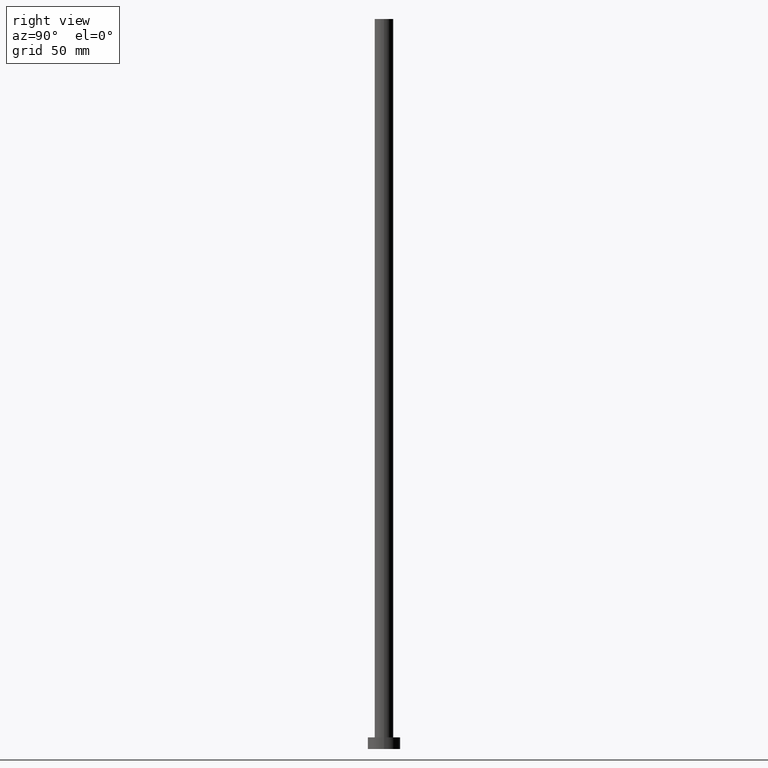
[diagram: clean part render]
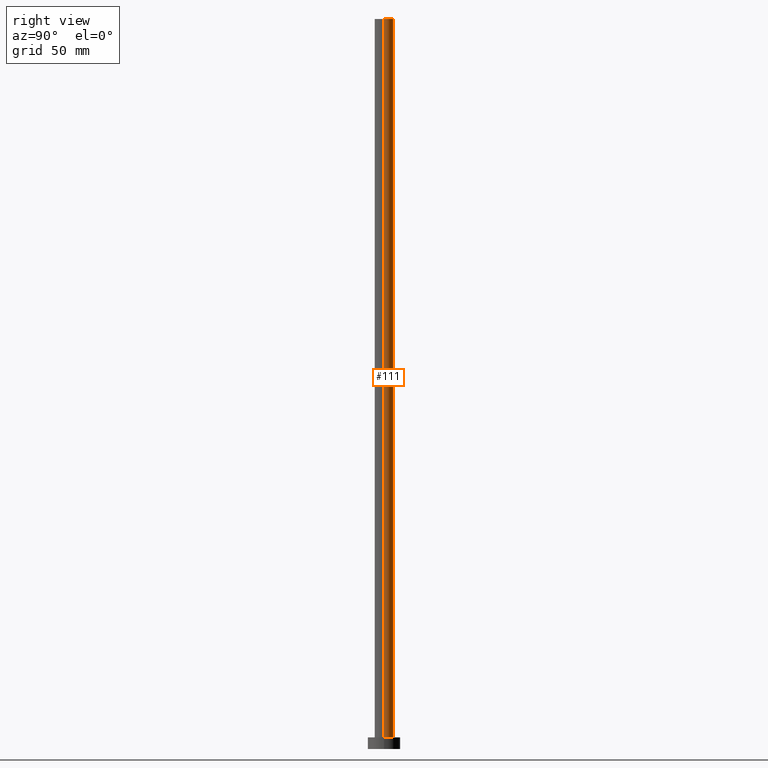
[diagram: same view with one face highlighted and labeled with its STEP entity id]
A machine part, right view. The second image highlights one B-rep face of the part: STEP entity #111.
In plain terms, the highlighted cylindrical surface (edge-blend (fillet) strip) has radius 4 mm, axis along (-0, -0, -1).
Its self-contained STEP definition (entity closure, byte-faithful):
#5 = CARTESIAN_POINT ( 'NONE',  ( 0.000000000000000000, 0.000000000000000000, 5.000000000000000000 ) ) ;
#10 = DIRECTION ( 'NONE',  ( 0.000000000000000000, 0.000000000000000000, 1.000000000000000000 ) ) ;
#23 = DIRECTION ( 'NONE',  ( -0.000000000000000000, -0.000000000000000000, -1.000000000000000000 ) ) ;
#26 = DIRECTION ( 'NONE',  ( -1.000000000000000000, 0.000000000000000000, 0.000000000000000000 ) ) ;
#29 = CARTESIAN_POINT ( 'NONE',  ( 0.000000000000000000, 0.000000000000000000, 315.0000000000000000 ) ) ;
#38 = VECTOR ( 'NONE', #223, 1000.000000000000000 ) ;
#58 = VERTEX_POINT ( 'NONE', #116 ) ;
#60 = FACE_OUTER_BOUND ( 'NONE', #70, .T. ) ;
#61 = CARTESIAN_POINT ( 'NONE',  ( -4.000000000000000000, 0.000000000000000000, 315.0000000000000000 ) ) ;
#70 = EDGE_LOOP ( 'NONE', ( #173, #71, #220, #252 ) ) ;
#71 = ORIENTED_EDGE ( 'NONE', *, *, #140, .T. ) ;
#81 = CARTESIAN_POINT ( 'NONE',  ( 4.000000000000000000, 4.898587196589412829E-16, 315.0000000000000000 ) ) ;
#84 = LINE ( 'NONE', #202, #191 ) ;
#86 = DIRECTION ( 'NONE',  ( 1.000000000000000000, 0.000000000000000000, 0.000000000000000000 ) ) ;
#93 = VERTEX_POINT ( 'NONE', #61 ) ;
#111 = ADVANCED_FACE ( 'NONE', ( #60 ), #135, .T. ) ;
#116 = CARTESIAN_POINT ( 'NONE',  ( -4.000000000000000000, 0.000000000000000000, 5.000000000000000000 ) ) ;
#133 = CIRCLE ( 'NONE', #142, 4.000000000000000000 ) ;
#135 = CYLINDRICAL_SURFACE ( 'NONE', #212, 4.000000000000000000 ) ;
#140 = EDGE_CURVE ( 'NONE', #170, #253, #84, .T. ) ;
#142 = AXIS2_PLACEMENT_3D ( 'NONE', #5, #206, #86 ) ;
#146 = AXIS2_PLACEMENT_3D ( 'NONE', #29, #10, #157 ) ;
#157 = DIRECTION ( 'NONE',  ( 1.000000000000000000, 0.000000000000000000, 0.000000000000000000 ) ) ;
#160 = CIRCLE ( 'NONE', #146, 4.000000000000000000 ) ;
#161 = CARTESIAN_POINT ( 'NONE',  ( -4.000000000000000000, 0.000000000000000000, 315.0000000000000000 ) ) ;
#162 = EDGE_CURVE ( 'NONE', #253, #58, #133, .T. ) ;
#170 = VERTEX_POINT ( 'NONE', #81 ) ;
#173 = ORIENTED_EDGE ( 'NONE', *, *, #188, .F. ) ;
#176 = CARTESIAN_POINT ( 'NONE',  ( 4.000000000000000000, 4.898587196589412829E-16, 5.000000000000000000 ) ) ;
#188 = EDGE_CURVE ( 'NONE', #170, #93, #160, .T. ) ;
#191 = VECTOR ( 'NONE', #243, 1000.000000000000000 ) ;
#192 = EDGE_CURVE ( 'NONE', #93, #58, #242, .T. ) ;
#202 = CARTESIAN_POINT ( 'NONE',  ( 4.000000000000000000, 4.898587196589412829E-16, 315.0000000000000000 ) ) ;
#203 = CARTESIAN_POINT ( 'NONE',  ( 0.000000000000000000, 0.000000000000000000, 315.0000000000000000 ) ) ;
#206 = DIRECTION ( 'NONE',  ( 0.000000000000000000, 0.000000000000000000, 1.000000000000000000 ) ) ;
#212 = AXIS2_PLACEMENT_3D ( 'NONE', #203, #23, #26 ) ;
#220 = ORIENTED_EDGE ( 'NONE', *, *, #162, .T. ) ;
#223 = DIRECTION ( 'NONE',  ( -0.000000000000000000, -0.000000000000000000, -1.000000000000000000 ) ) ;
#242 = LINE ( 'NONE', #161, #38 ) ;
#243 = DIRECTION ( 'NONE',  ( -0.000000000000000000, -0.000000000000000000, -1.000000000000000000 ) ) ;
#252 = ORIENTED_EDGE ( 'NONE', *, *, #192, .F. ) ;
#253 = VERTEX_POINT ( 'NONE', #176 ) ;